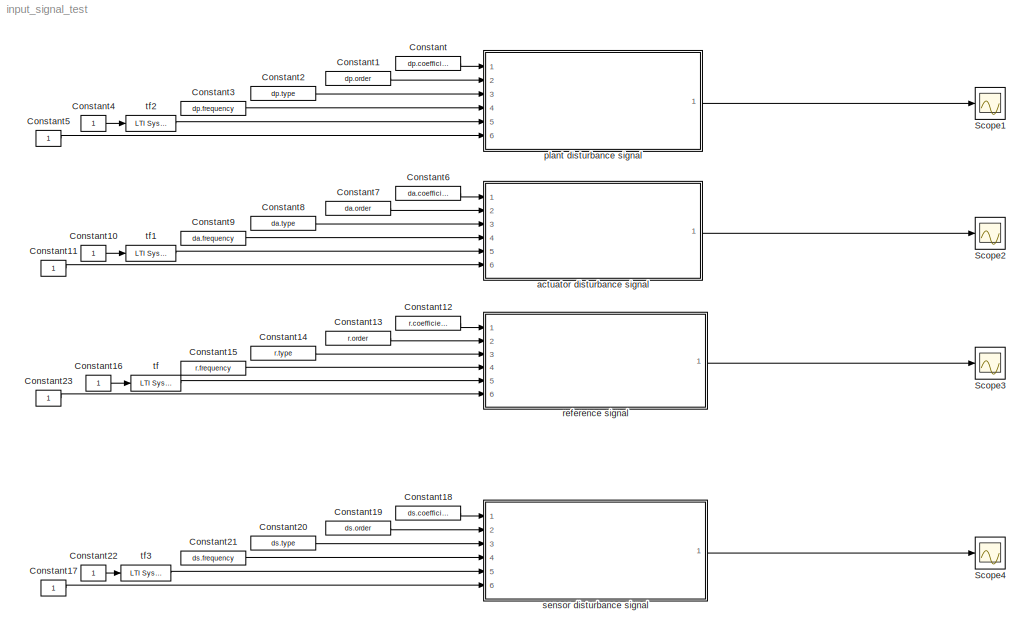
MODEL input_signal_test
KIND model
BLOCK [Constant] Constant
  OutDataType = fixdt(1, 16)
  OutScaling = 2^0
  SID = 22
  Value = dp.coefficient
BLOCK [Constant] Constant1
  OutDataType = fixdt(1, 16)
  OutScaling = 2^0
  SID = 23
  Value = dp.order
BLOCK [Constant] Constant10
  OutDataType = fixdt(1, 16)
  OutScaling = 2^0
  SID = 24
BLOCK [Constant] Constant11
  OutDataType = fixdt(1, 16)
  OutScaling = 2^0
  SID = 58
BLOCK [Constant] Constant12
  OutDataType = fixdt(1, 16)
  OutScaling = 2^0
  SID = 25
  Value = r.coefficient
BLOCK [Constant] Constant13
  OutDataType = fixdt(1, 16)
  OutScaling = 2^0
  SID = 26
  Value = r.order
BLOCK [Constant] Constant14
  OutDataType = fixdt(1, 16)
  OutScaling = 2^0
  SID = 27
  Value = r.type
BLOCK [Constant] Constant15
  OutDataType = fixdt(1, 16)
  OutScaling = 2^0
  SID = 28
  Value = r.frequency
BLOCK [Constant] Constant16
  OutDataType = fixdt(1, 16)
  OutScaling = 2^0
  SID = 29
BLOCK [Constant] Constant17
  OutDataType = fixdt(1, 16)
  OutScaling = 2^0
  SID = 59
BLOCK [Constant] Constant18
  OutDataType = fixdt(1, 16)
  OutScaling = 2^0
  SID = 30
  Value = ds.coefficient
BLOCK [Constant] Constant19
  OutDataType = fixdt(1, 16)
  OutScaling = 2^0
  SID = 31
  Value = ds.order
BLOCK [Constant] Constant2
  OutDataType = fixdt(1, 16)
  OutScaling = 2^0
  SID = 32
  Value = dp.type
BLOCK [Constant] Constant20
  OutDataType = fixdt(1, 16)
  OutScaling = 2^0
  SID = 33
  Value = ds.type
BLOCK [Constant] Constant21
  OutDataType = fixdt(1, 16)
  OutScaling = 2^0
  SID = 34
  Value = ds.frequency
BLOCK [Constant] Constant22
  OutDataType = fixdt(1, 16)
  OutScaling = 2^0
  SID = 35
BLOCK [Constant] Constant23
  OutDataType = fixdt(1, 16)
  OutScaling = 2^0
  SID = 60
BLOCK [Constant] Constant3
  OutDataType = fixdt(1, 16)
  OutScaling = 2^0
  SID = 36
  Value = dp.frequency
BLOCK [Constant] Constant4
  OutDataType = fixdt(1, 16)
  OutScaling = 2^0
  SID = 37
BLOCK [Constant] Constant5
  OutDataType = fixdt(1, 16)
  OutScaling = 2^0
  SID = 57
BLOCK [Constant] Constant6
  OutDataType = fixdt(1, 16)
  OutScaling = 2^0
  SID = 38
  Value = da.coefficient
BLOCK [Constant] Constant7
  OutDataType = fixdt(1, 16)
  OutScaling = 2^0
  SID = 39
  Value = da.order
BLOCK [Constant] Constant8
  OutDataType = fixdt(1, 16)
  OutScaling = 2^0
  SID = 40
  Value = da.type
BLOCK [Constant] Constant9
  OutDataType = fixdt(1, 16)
  OutScaling = 2^0
  SID = 41
  Value = da.frequency
BLOCK [Scope] Scope1
  DataFormat = StructureWithTime
  Floating = off
  NumInputPorts = 1
  Ports = [1]
  SID = 14
  SampleTime = 0
  SaveName = ScopeData1
BLOCK [Scope] Scope2
  DataFormat = StructureWithTime
  Floating = off
  NumInputPorts = 1
  Ports = [1]
  SID = 54
  SampleTime = 0
BLOCK [Scope] Scope3
  DataFormat = StructureWithTime
  Floating = off
  NumInputPorts = 1
  Ports = [1]
  SID = 55
  SampleTime = 0
  SaveName = ScopeData2
BLOCK [Scope] Scope4
  DataFormat = StructureWithTime
  Floating = off
  NumInputPorts = 1
  Ports = [1]
  SID = 56
  SampleTime = 0
  SaveName = ScopeData3
BLOCK [ModelReference] actuator disturbance signal
  CopyOfModelName = input_signal
  ModelNameDialog = input_signal
  ModelReferenceVersion = 1.13
  Ports = [6, 1]
  SID = 46
BLOCK [ModelReference] plant disturbance signal
  CopyOfModelName = input_signal
  ModelNameDialog = input_signal
  ModelReferenceVersion = 1.13
  Ports = [6, 1]
  SID = 47
BLOCK [ModelReference] reference signal
  CopyOfModelName = input_signal
  ModelNameDialog = input_signal
  ModelReferenceVersion = 1.13
  Ports = [6, 1]
  SID = 48
BLOCK [ModelReference] sensor disturbance signal
  CopyOfModelName = input_signal
  ModelNameDialog = input_signal
  ModelReferenceVersion = 1.13
  Ports = [6, 1]
  SID = 49
BLOCK [Reference] tf  REF=cstblocks/LTI System
  FunctionWithSeparateData = off
  IC = []
  Ports = [1, 1]
  RTWMemSecDataConstants = Inherit from model
  RTWMemSecDataInternal = Inherit from model
  RTWMemSecDataParameters = Inherit from model
  RTWMemSecFuncExecute = Inherit from model
  RTWMemSecFuncInitTerm = Inherit from model
  SID = 50
  ShowPortLabels = FromPortIcon
  SourceBlock = cstblocks/LTI System
  SourceType = LTI Block
  SystemSampleTime = -1
  sys = r.tf
BLOCK [Reference] tf1  REF=cstblocks/LTI System
  FunctionWithSeparateData = off
  IC = []
  Ports = [1, 1]
  RTWMemSecDataConstants = Inherit from model
  RTWMemSecDataInternal = Inherit from model
  RTWMemSecDataParameters = Inherit from model
  RTWMemSecFuncExecute = Inherit from model
  RTWMemSecFuncInitTerm = Inherit from model
  SID = 51
  ShowPortLabels = FromPortIcon
  SourceBlock = cstblocks/LTI System
  SourceType = LTI Block
  SystemSampleTime = -1
  sys = da.tf
BLOCK [Reference] tf2  REF=cstblocks/LTI System
  FunctionWithSeparateData = off
  IC = []
  Ports = [1, 1]
  RTWMemSecDataConstants = Inherit from model
  RTWMemSecDataInternal = Inherit from model
  RTWMemSecDataParameters = Inherit from model
  RTWMemSecFuncExecute = Inherit from model
  RTWMemSecFuncInitTerm = Inherit from model
  SID = 52
  ShowPortLabels = FromPortIcon
  SourceBlock = cstblocks/LTI System
  SourceType = LTI Block
  SystemSampleTime = -1
  sys = dp.tf
BLOCK [Reference] tf3  REF=cstblocks/LTI System
  FunctionWithSeparateData = off
  IC = []
  Ports = [1, 1]
  RTWMemSecDataConstants = Inherit from model
  RTWMemSecDataInternal = Inherit from model
  RTWMemSecDataParameters = Inherit from model
  RTWMemSecFuncExecute = Inherit from model
  RTWMemSecFuncInitTerm = Inherit from model
  SID = 53
  ShowPortLabels = FromPortIcon
  SourceBlock = cstblocks/LTI System
  SourceType = LTI Block
  SystemSampleTime = -1
  sys = ds.tf
LINE Constant10:1 -> tf1:1
LINE Constant11:1 -> actuator disturbance signal:6
LINE Constant12:1 -> reference signal:1
LINE Constant13:1 -> reference signal:2
LINE Constant14:1 -> reference signal:3
LINE Constant15:1 -> reference signal:4
LINE Constant16:1 -> tf:1
LINE Constant17:1 -> sensor disturbance signal:6
LINE Constant18:1 -> sensor disturbance signal:1
LINE Constant19:1 -> sensor disturbance signal:2
LINE Constant1:1 -> plant disturbance signal:2
LINE Constant20:1 -> sensor disturbance signal:3
LINE Constant21:1 -> sensor disturbance signal:4
LINE Constant22:1 -> tf3:1
LINE Constant23:1 -> reference signal:6
LINE Constant2:1 -> plant disturbance signal:3
LINE Constant3:1 -> plant disturbance signal:4
LINE Constant4:1 -> tf2:1
LINE Constant5:1 -> plant disturbance signal:6
LINE Constant6:1 -> actuator disturbance signal:1
LINE Constant7:1 -> actuator disturbance signal:2
LINE Constant8:1 -> actuator disturbance signal:3
LINE Constant9:1 -> actuator disturbance signal:4
LINE Constant:1 -> plant disturbance signal:1
LINE actuator disturbance signal:1 -> Scope2:1
LINE plant disturbance signal:1 -> Scope1:1
LINE reference signal:1 -> Scope3:1
LINE sensor disturbance signal:1 -> Scope4:1
LINE tf1:1 -> actuator disturbance signal:5
LINE tf2:1 -> plant disturbance signal:5
LINE tf3:1 -> sensor disturbance signal:5
LINE tf:1 -> reference signal:5
